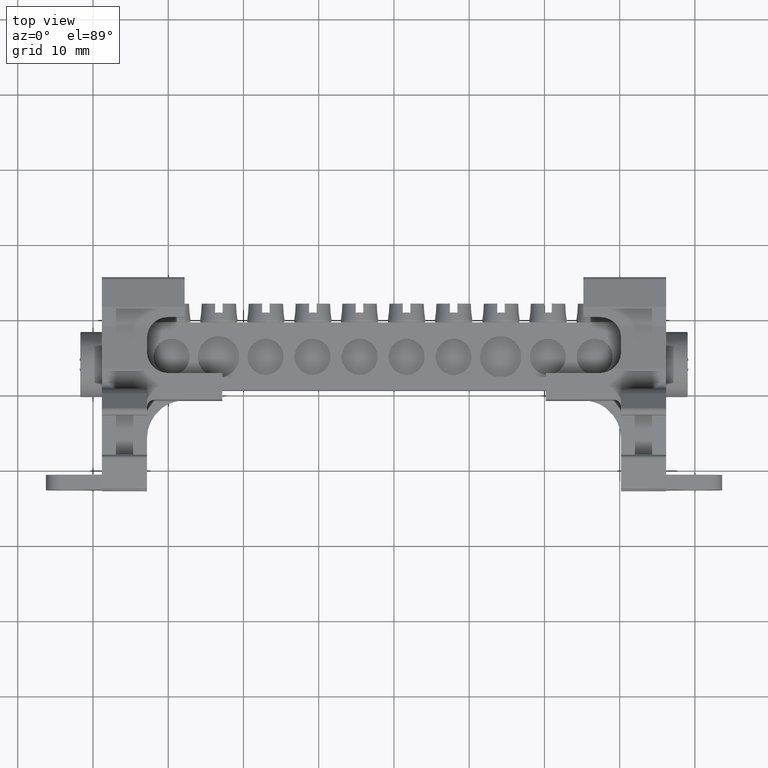
[diagram: clean part render]
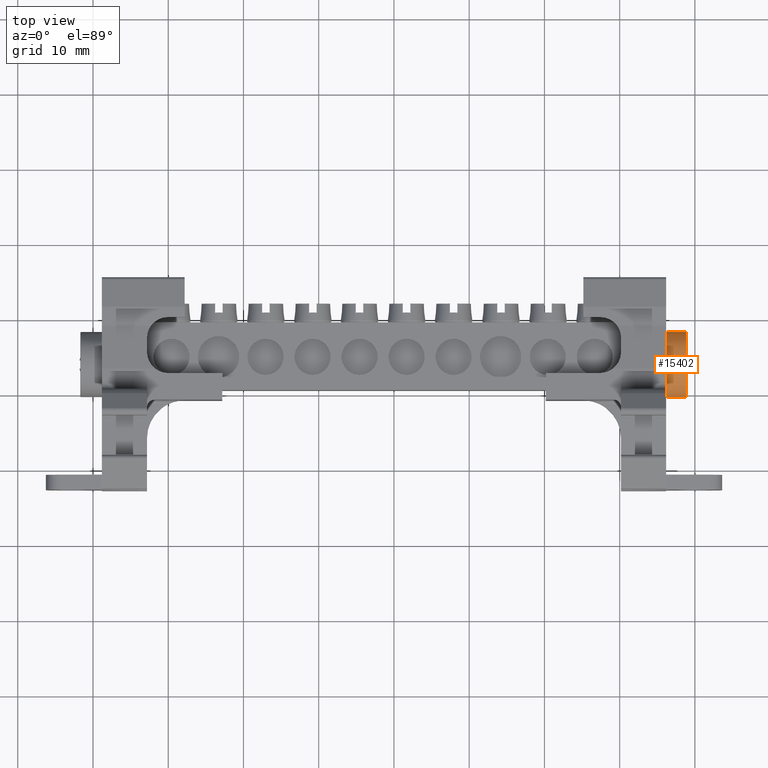
[diagram: same view with one face highlighted and labeled with its STEP entity id]
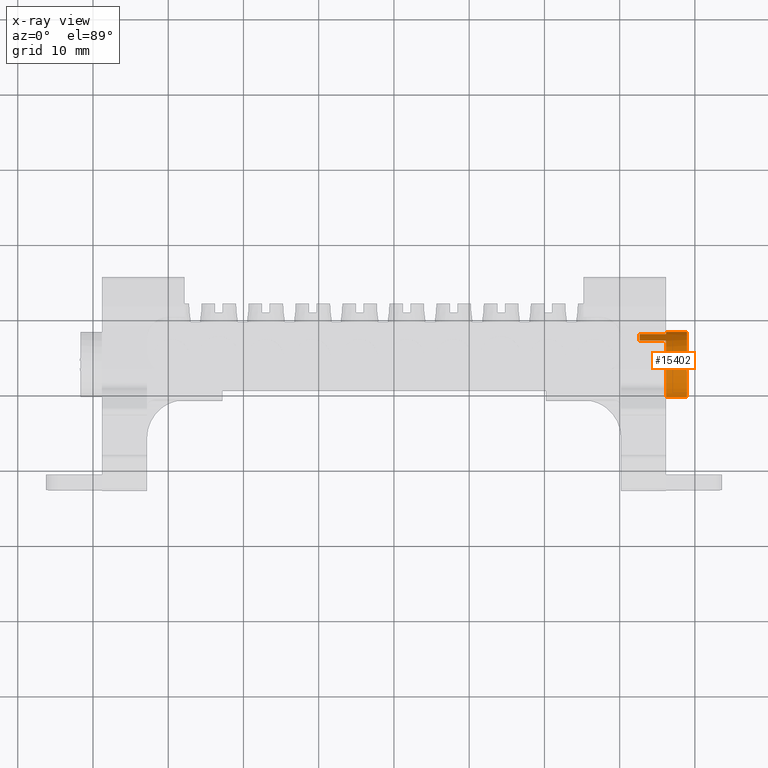
[diagram: x-ray of the same camera — body ghosted, the highlighted face saturated]
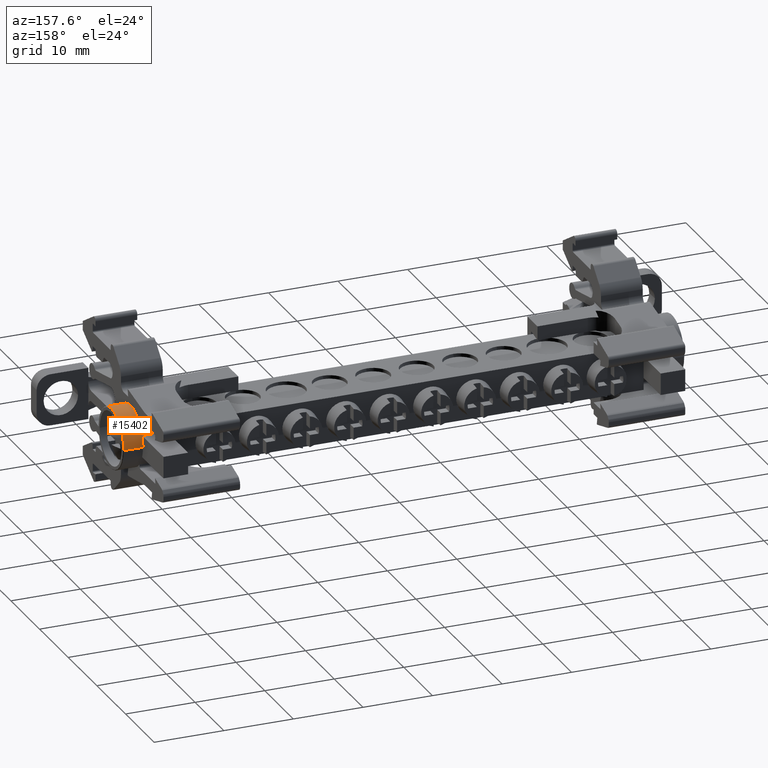
[diagram: same view with one face highlighted and labeled with its STEP entity id]
A machine part, top view. The second image highlights one B-rep face of the part: STEP entity #15402.
The next image is the same camera in x-ray: the body ghosted, the highlighted face saturated — about 0% of this face is hidden behind the body in this view.
A second angle (auxiliary view) of the same face is appended — the face is thin or edge-on in the first view.
In plain terms, the highlighted cylindrical surface (edge-blend (fillet) strip) has radius 4.325 mm, axis along (-1, -0, -0).
Its self-contained STEP definition (entity closure, byte-faithful):
#334 = AXIS2_PLACEMENT_3D ( 'NONE', #7156, #7153, #7157 ) ;
#4176 = VERTEX_POINT ( 'NONE', #5950 ) ;
#4212 = VERTEX_POINT ( 'NONE', #5971 ) ;
#4239 = VERTEX_POINT ( 'NONE', #6027 ) ;
#4247 = VERTEX_POINT ( 'NONE', #6007 ) ;
#4252 = VERTEX_POINT ( 'NONE', #6035 ) ;
#4255 = VERTEX_POINT ( 'NONE', #6047 ) ;
#4256 = VERTEX_POINT ( 'NONE', #6041 ) ;
#4301 = VERTEX_POINT ( 'NONE', #6129 ) ;
#5950 = CARTESIAN_POINT ( 'NONE',  ( -53.82164581438651400, -92.03769362803274100, 217.5629665599203100 ) ) ;
#5971 = CARTESIAN_POINT ( 'NONE',  ( -51.07164581438644300, -100.3841813248499800, 215.9713441700650900 ) ) ;
#6007 = CARTESIAN_POINT ( 'NONE',  ( -53.82164581438652100, -91.73418132484982800, 215.9713441700650700 ) ) ;
#6027 = CARTESIAN_POINT ( 'NONE',  ( -53.82164581438651400, -100.3841813248499800, 215.9713441700650700 ) ) ;
#6035 = CARTESIAN_POINT ( 'NONE',  ( -57.35164581438647200, -92.03769362803277000, 217.5629665599203100 ) ) ;
#6041 = CARTESIAN_POINT ( 'NONE',  ( -53.82164581438659900, -92.94444791372515600, 218.9720208900107300 ) ) ;
#6047 = CARTESIAN_POINT ( 'NONE',  ( -57.35164581438648000, -92.94444792247883000, 218.9720208990970900 ) ) ;
#6129 = CARTESIAN_POINT ( 'NONE',  ( -51.07164581438654200, -91.73418132484981400, 215.9713441700650900 ) ) ;
#7149 = CYLINDRICAL_SURFACE ( 'NONE', #334, 4.325000000000079200 ) ;
#7153 = DIRECTION ( 'NONE',  ( -1.000000000000000000, -1.101172293446148100E-014, -2.403906012228000300E-015 ) ) ;
#7156 = CARTESIAN_POINT ( 'NONE',  ( -53.82164581438651400, -96.05918132484990200, 215.9713441700650700 ) ) ;
#7157 = DIRECTION ( 'NONE',  ( 1.123057972886698400E-014, -1.000000000000000000, 0.0000000000000000000 ) ) ;
#7196 = FACE_OUTER_BOUND ( 'NONE', #20075, .T. ) ;
#9211 = EDGE_CURVE ( 'NONE', #4239, #4256, #13441, .T. ) ;
#9223 = EDGE_CURVE ( 'NONE', #4212, #4239, #21867, .T. ) ;
#9238 = EDGE_CURVE ( 'NONE', #4255, #4256, #21983, .T. ) ;
#12320 = DIRECTION ( 'NONE',  ( 1.123057972886698400E-014, -1.000000000000000000, -6.417474130781133800E-015 ) ) ;
#12348 = DIRECTION ( 'NONE',  ( 1.000000000000000000, 1.101172293446148100E-014, 2.403906012228000300E-015 ) ) ;
#12351 = CARTESIAN_POINT ( 'NONE',  ( -57.35164581438643000, -96.05918132484994500, 215.9713441700650700 ) ) ;
#12378 = DIRECTION ( 'NONE',  ( -1.000000000000000000, -1.101172293446148100E-014, -2.403906012228000300E-015 ) ) ;
#12379 = DIRECTION ( 'NONE',  ( 1.123057972886698400E-014, -1.000000000000000000, 0.0000000000000000000 ) ) ;
#12385 = CARTESIAN_POINT ( 'NONE',  ( -51.07164581438649300, -96.05918132484987400, 215.9713441700650700 ) ) ;
#12412 = CARTESIAN_POINT ( 'NONE',  ( -53.82164581438655700, -91.73418132484982800, 215.9713441700650700 ) ) ;
#12413 = DIRECTION ( 'NONE',  ( -1.000000000000000000, -1.101172293446148100E-014, -2.403906012228000300E-015 ) ) ;
#12430 = LINE ( 'NONE', #12412, #23573 ) ;
#12450 = LINE ( 'NONE', #12474, #23603 ) ;
#12455 = DIRECTION ( 'NONE',  ( -1.000000000000000000, -1.100161628464490100E-014, -2.364590298907920300E-015 ) ) ;
#12457 = DIRECTION ( 'NONE',  ( 1.123057972886698400E-014, -1.000000000000000000, 0.0000000000000000000 ) ) ;
#12468 = CARTESIAN_POINT ( 'NONE',  ( -53.82164581438647100, -96.05918132484990200, 215.9713441700650700 ) ) ;
#12474 = CARTESIAN_POINT ( 'NONE',  ( -16.39264406477284900, -92.03769361108184900, 217.5629665571582300 ) ) ;
#12476 = DIRECTION ( 'NONE',  ( -1.000000000000000000, -1.101172293446148100E-014, -2.403906012228000300E-015 ) ) ;
#13414 = AXIS2_PLACEMENT_3D ( 'NONE', #21730, #21732, #21740 ) ;
#13441 = CIRCLE ( 'NONE', #13414, 4.325000000000079200 ) ;
#13448 = VECTOR ( 'NONE', #21870, 1000.000000000000000 ) ;
#13473 = VECTOR ( 'NONE', #22077, 1000.000000000000000 ) ;
#15402 = ADVANCED_FACE ( 'NONE', ( #7196 ), #7149, .T. ) ;
#17000 = EDGE_CURVE ( 'NONE', #4252, #4255, #23516, .T. ) ;
#17028 = EDGE_CURVE ( 'NONE', #4212, #4301, #23583, .T. ) ;
#17065 = EDGE_CURVE ( 'NONE', #4301, #4247, #12430, .T. ) ;
#17073 = EDGE_CURVE ( 'NONE', #4176, #4247, #23567, .T. ) ;
#17092 = EDGE_CURVE ( 'NONE', #4176, #4252, #12450, .T. ) ;
#20075 = EDGE_LOOP ( 'NONE', ( #20935, #20895, #20927, #20882, #20897, #20922, #20904, #20899 ) ) ;
#20882 = ORIENTED_EDGE ( 'NONE', *, *, #17092, .T. ) ;
#20895 = ORIENTED_EDGE ( 'NONE', *, *, #17065, .T. ) ;
#20897 = ORIENTED_EDGE ( 'NONE', *, *, #17000, .T. ) ;
#20899 = ORIENTED_EDGE ( 'NONE', *, *, #9223, .F. ) ;
#20904 = ORIENTED_EDGE ( 'NONE', *, *, #9211, .F. ) ;
#20922 = ORIENTED_EDGE ( 'NONE', *, *, #9238, .T. ) ;
#20927 = ORIENTED_EDGE ( 'NONE', *, *, #17073, .F. ) ;
#20935 = ORIENTED_EDGE ( 'NONE', *, *, #17028, .T. ) ;
#21730 = CARTESIAN_POINT ( 'NONE',  ( -53.82164581438655700, -96.05918132484990200, 215.9713441700650700 ) ) ;
#21732 = DIRECTION ( 'NONE',  ( -1.000000000000000000, -1.101172293446148100E-014, -2.403906012228000300E-015 ) ) ;
#21740 = DIRECTION ( 'NONE',  ( 1.123057972886698400E-014, -1.000000000000000000, 0.0000000000000000000 ) ) ;
#21863 = CARTESIAN_POINT ( 'NONE',  ( -53.82164581438646400, -100.3841813248499800, 215.9713441700650700 ) ) ;
#21867 = LINE ( 'NONE', #21863, #13448 ) ;
#21870 = DIRECTION ( 'NONE',  ( -1.000000000000000000, -1.101172293446148100E-014, -2.403906012228000300E-015 ) ) ;
#21983 = LINE ( 'NONE', #21987, #13473 ) ;
#21987 = CARTESIAN_POINT ( 'NONE',  ( -53.82164581438654900, -92.94444792247877300, 218.9720208990970600 ) ) ;
#22077 = DIRECTION ( 'NONE',  ( 1.000000000000000000, 1.101172293446148100E-014, 2.403906012228000300E-015 ) ) ;
#23516 = CIRCLE ( 'NONE', #23535, 4.325000000000079200 ) ;
#23535 = AXIS2_PLACEMENT_3D ( 'NONE', #12351, #12348, #12320 ) ;
#23558 = AXIS2_PLACEMENT_3D ( 'NONE', #12468, #12476, #12457 ) ;
#23565 = AXIS2_PLACEMENT_3D ( 'NONE', #12385, #12378, #12379 ) ;
#23567 = CIRCLE ( 'NONE', #23558, 4.325000000000079200 ) ;
#23573 = VECTOR ( 'NONE', #12413, 1000.000000000000000 ) ;
#23583 = CIRCLE ( 'NONE', #23565, 4.325000000000079200 ) ;
#23603 = VECTOR ( 'NONE', #12455, 1000.000000000000000 ) ;